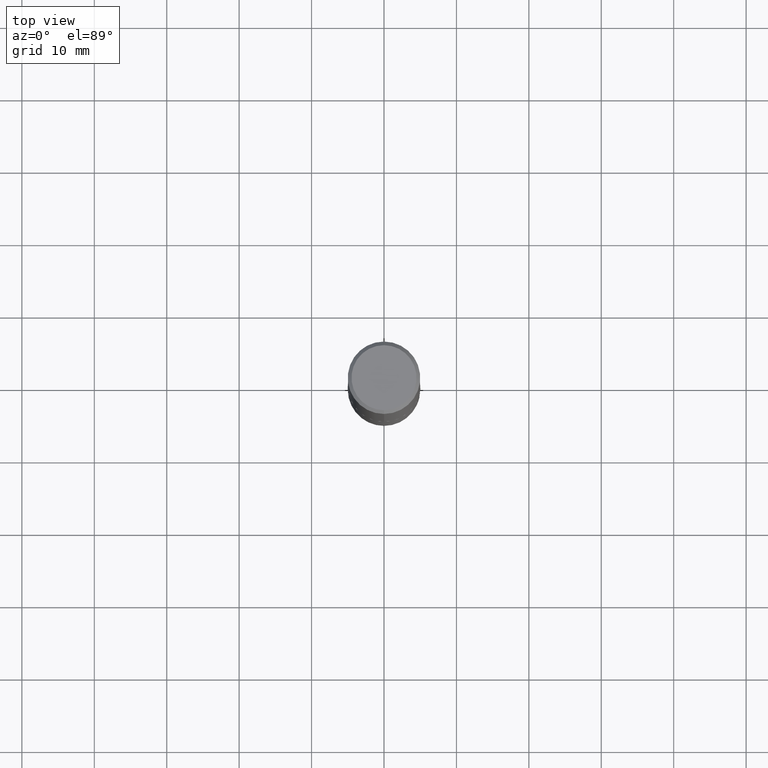
[diagram: clean part render]
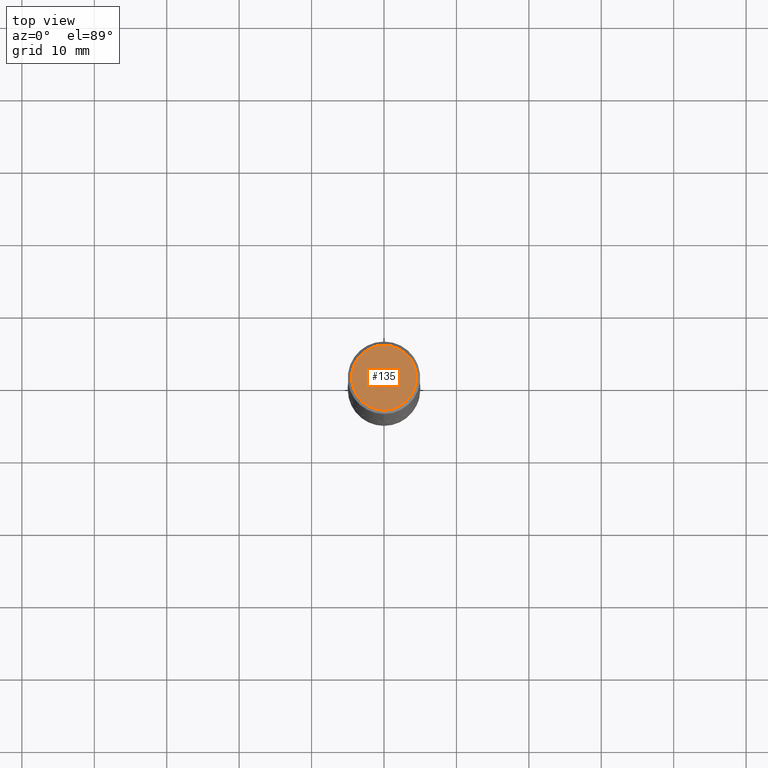
[diagram: same view with one face highlighted and labeled with its STEP entity id]
A machine part, top view. The second image highlights one B-rep face of the part: STEP entity #135.
In plain terms, the highlighted planar face has unit normal (0, -0, -1).
Its self-contained STEP definition (entity closure, byte-faithful):
#27 = AXIS2_PLACEMENT_3D ( 'NONE', #201, #331, #37 ) ;
#37 = DIRECTION ( 'NONE',  ( -6.982962677686265922E-15, -1.000000000000000000, 3.492897042394239153E-15 ) ) ;
#100 = AXIS2_PLACEMENT_3D ( 'NONE', #296, #265, #149 ) ;
#109 = CIRCLE ( 'NONE', #27, 0.1768499999999999794 ) ;
#135 = ADVANCED_FACE ( 'NONE', ( #206 ), #330, .F. ) ;
#149 = DIRECTION ( 'NONE',  ( 6.982962677686265922E-15, 1.000000000000000000, -3.492897042394238758E-15 ) ) ;
#152 = VERTEX_POINT ( 'NONE', #304 ) ;
#159 = CARTESIAN_POINT ( 'NONE',  ( -8.408637260450320895E-46, 1.201503039748787868E-31, 3.439846709381409668E-17 ) ) ;
#177 = ORIENTED_EDGE ( 'NONE', *, *, #280, .T. ) ;
#186 = DIRECTION ( 'NONE',  ( -6.982962677686265922E-15, -1.000000000000000000, 3.492897042394239153E-15 ) ) ;
#188 = VERTEX_POINT ( 'NONE', #333 ) ;
#201 = CARTESIAN_POINT ( 'NONE',  ( -8.408637260450320895E-46, 1.201503039748787868E-31, 3.439846709381409668E-17 ) ) ;
#206 = FACE_OUTER_BOUND ( 'NONE', #267, .T. ) ;
#226 = AXIS2_PLACEMENT_3D ( 'NONE', #159, #312, #186 ) ;
#265 = DIRECTION ( 'NONE',  ( 2.444480225679141214E-29, -3.492897042394238758E-15, -1.000000000000000000 ) ) ;
#267 = EDGE_LOOP ( 'NONE', ( #410, #177 ) ) ;
#280 = EDGE_CURVE ( 'NONE', #152, #188, #109, .T. ) ;
#296 = CARTESIAN_POINT ( 'NONE',  ( 1.234936949548815998E-15, 0.1768499999999999794, -6.005196084005140251E-16 ) ) ;
#304 = CARTESIAN_POINT ( 'NONE',  ( -1.281884050883610492E-15, -0.1768499999999999794, 6.521173090412352440E-16 ) ) ;
#312 = DIRECTION ( 'NONE',  ( -2.444480225679141495E-29, 3.492897042394238758E-15, 1.000000000000000000 ) ) ;
#330 = PLANE ( 'NONE',  #100 ) ;
#331 = DIRECTION ( 'NONE',  ( -2.444480225679141495E-29, 3.492897042394238758E-15, 1.000000000000000000 ) ) ;
#333 = CARTESIAN_POINT ( 'NONE',  ( 1.304766576325679099E-15, 0.1768499999999999794, -5.833203748536070507E-16 ) ) ;
#358 = EDGE_CURVE ( 'NONE', #188, #152, #411, .T. ) ;
#410 = ORIENTED_EDGE ( 'NONE', *, *, #358, .T. ) ;
#411 = CIRCLE ( 'NONE', #226, 0.1768499999999999794 ) ;